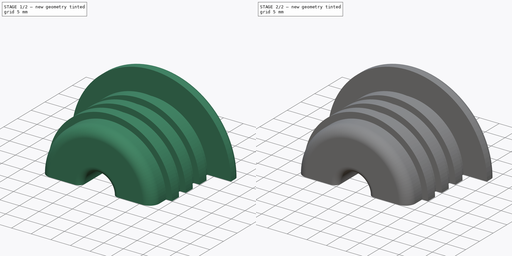
[diagram: build sequence overview — one tinted view per stage of 2, left to right]
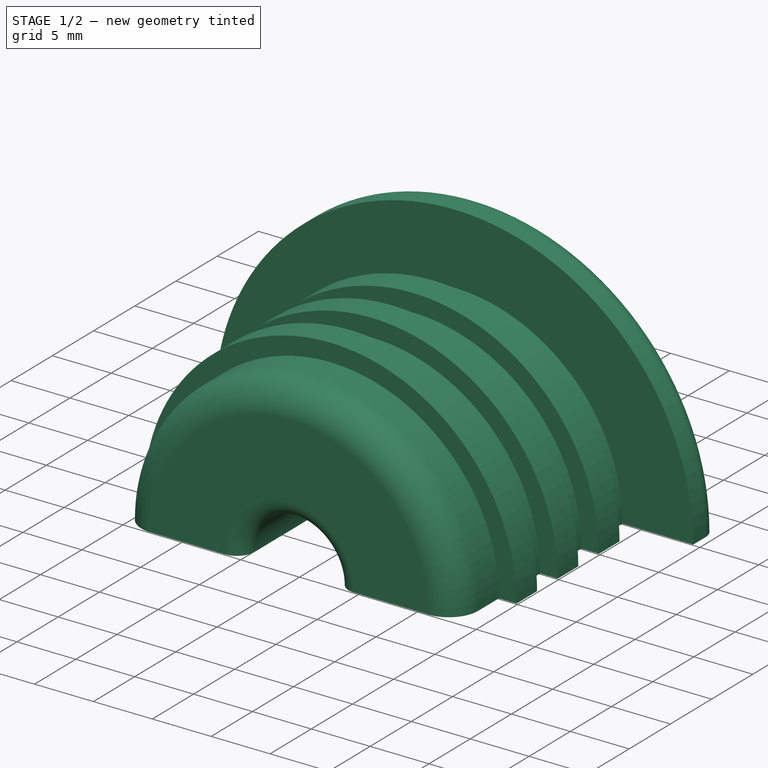
[diagram: stage 1 of 2 — iso view after this stage's code; geometry added in this stage tinted green]
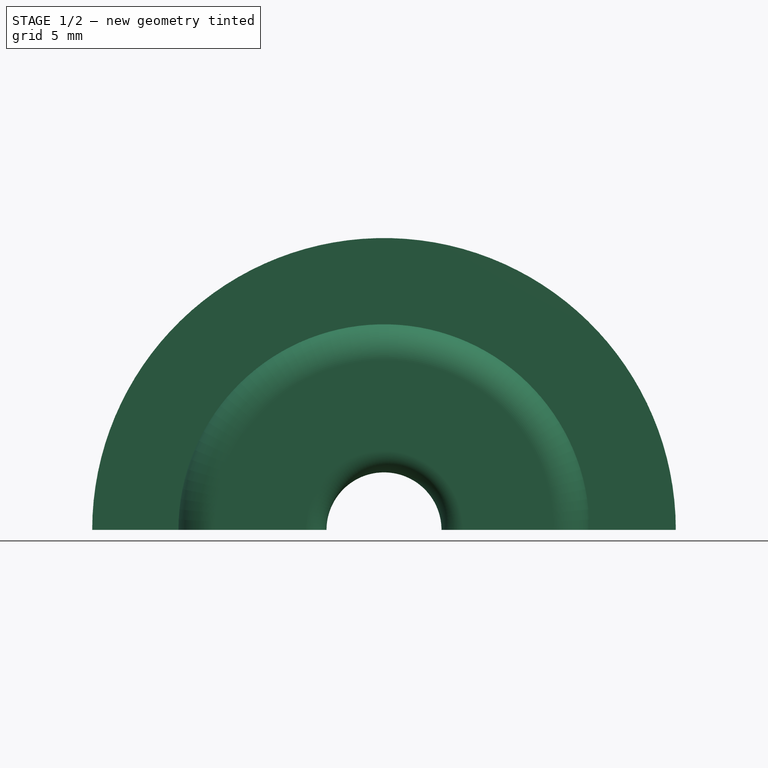
[diagram: stage 1 of 2 — front view after this stage's code; geometry added in this stage tinted green]
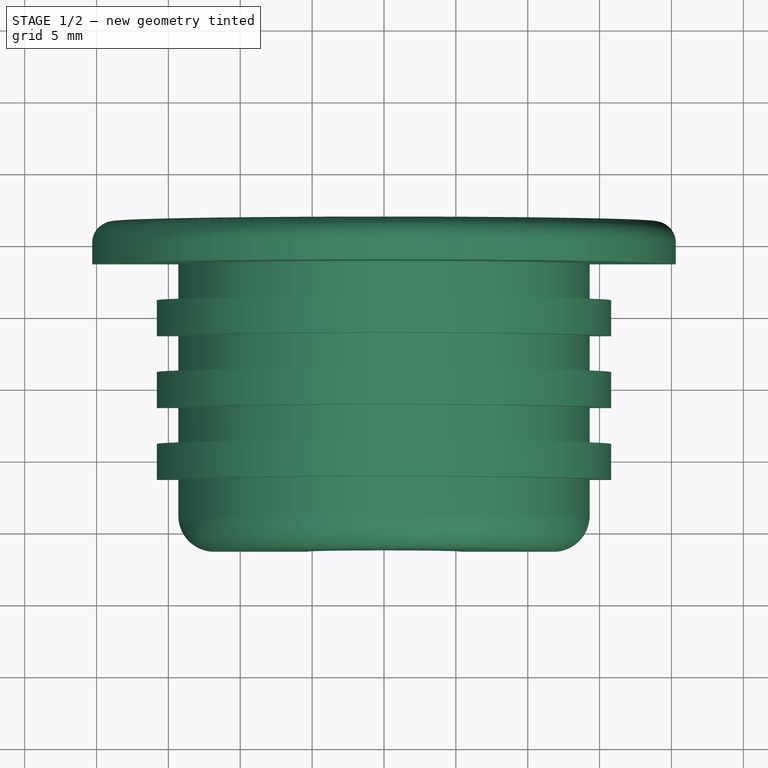
[diagram: stage 1 of 2 — top view after this stage's code; geometry added in this stage tinted green]
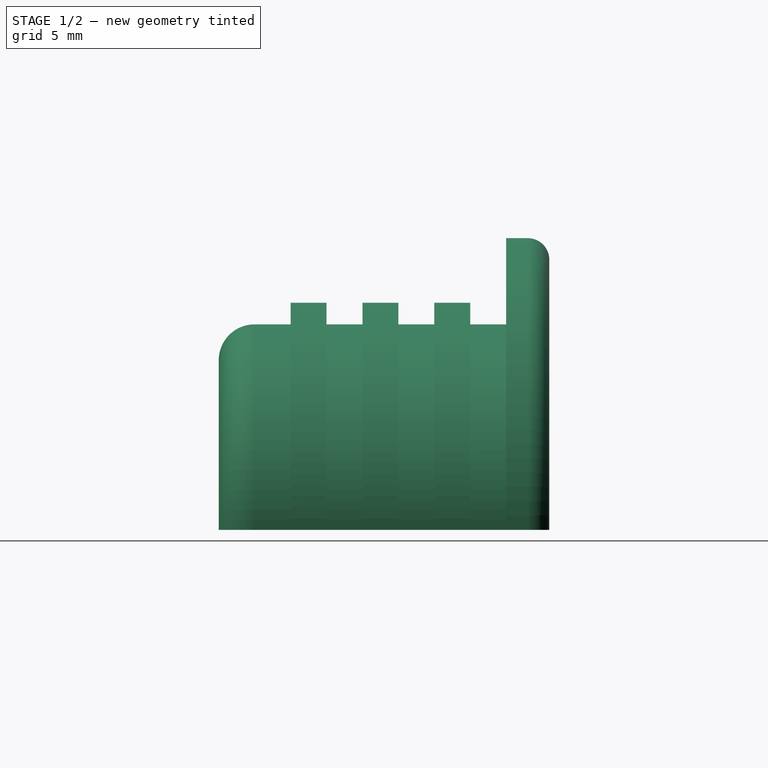
[diagram: stage 1 of 2 — right view after this stage's code; geometry added in this stage tinted green]
FCSTD DOCUMENT  (FreeCAD 0.15R4671 (Git))
Label: cable_stopper
License: All rights reserved
LicenseURL: http://en.wikipedia.org/wiki/All_rights_reserved
objects: Sketcher::SketchObject×2, PartDesign::Revolution×2
note: 6 computed .brp shape members not serialized (recipe doc carries the construction recipe); baked Part::Feature solids carry a one-line shape summary decoded from their .brp

FEATURE [Sketcher::SketchObject] Sketch001
  sketch-geometry (22):
    g0: LineSegment StartX=4 StartY=10.25 StartZ=0 EndX=4 EndY=-9.75 EndZ=0
    g1: LineSegment StartX=5.5 StartY=-11.25 StartZ=0 EndX=11.8034 EndY=-11.25 EndZ=0
    g2: LineSegment StartX=14.3034 StartY=-8.75 StartZ=0 EndX=14.3034 EndY=-6.25 EndZ=0
    g3: LineSegment StartX=14.3034 StartY=-6.25 StartZ=0 EndX=15.8034 EndY=-6.25 EndZ=0
    g4: LineSegment StartX=15.8034 StartY=-6.25 StartZ=0 EndX=15.8034 EndY=-3.75 EndZ=0
    g5: LineSegment StartX=15.8034 StartY=-3.75 StartZ=0 EndX=14.3034 EndY=-3.75 EndZ=0
    g6: LineSegment StartX=14.3034 StartY=-3.75 StartZ=0 EndX=14.3034 EndY=-1.25 EndZ=0
    g7: LineSegment StartX=14.3034 StartY=-1.25 StartZ=0 EndX=15.8034 EndY=-1.25 EndZ=0
    g8: LineSegment StartX=15.8034 StartY=-1.25 StartZ=0 EndX=15.8034 EndY=1.25 EndZ=0
    g9: LineSegment StartX=15.8034 StartY=1.25 StartZ=0 EndX=14.3034 EndY=1.25 EndZ=0
    g10: LineSegment StartX=14.3034 StartY=1.25 StartZ=0 EndX=14.3034 EndY=3.75 EndZ=0
    g11: LineSegment StartX=14.3034 StartY=3.75 StartZ=0 EndX=15.8034 EndY=3.75 EndZ=0
    g12: LineSegment StartX=15.8034 StartY=3.75 StartZ=0 EndX=15.8034 EndY=6.25 EndZ=0
    g13: LineSegment StartX=15.8034 StartY=6.25 StartZ=0 EndX=14.3034 EndY=6.25 EndZ=0
    g14: LineSegment StartX=14.3034 StartY=6.25 StartZ=0 EndX=14.3034 EndY=8.75 EndZ=0
    g15: LineSegment StartX=14.3034 StartY=8.75 StartZ=0 EndX=20.3034 EndY=8.75 EndZ=0
    g16: LineSegment StartX=20.3034 StartY=8.75 StartZ=0 EndX=20.3034 EndY=10.25 EndZ=0
    g17: LineSegment StartX=18.8034 StartY=11.75 StartZ=0 EndX=5.5 EndY=11.75 EndZ=0
    g18: ArcOfCircle CenterX=18.8034 CenterY=10.25 CenterZ=0 NormalX=0 NormalY=0 NormalZ=1 Radius=1.5 StartAngle=0 EndAngle=1.5708
    g19: ArcOfCircle CenterX=11.8034 CenterY=-8.75 CenterZ=0 NormalX=0 NormalY=0 NormalZ=1 Radius=2.5 StartAngle=4.71239 EndAngle=6.28319
    g20: ArcOfCircle CenterX=5.5 CenterY=10.25 CenterZ=0 NormalX=0 NormalY=0 NormalZ=1 Radius=1.5 StartAngle=1.5708 EndAngle=3.14159
    g21: ArcOfCircle CenterX=5.5 CenterY=-9.75 CenterZ=0 NormalX=0 NormalY=0 NormalZ=1 Radius=1.5 StartAngle=3.14159 EndAngle=4.71239
  constraints (62):
    c: Vertical(g0)
    c: Horizontal(g1)
    c: Vertical(g2)
    c: Coincident(g2,g3)
    c: Coincident(g3,g4)
    c: Vertical(g4)
    c: Coincident(g4,g5)
    c: Horizontal(g5)
    c: Coincident(g5,g6)
    c: Vertical(g6)
    c: Coincident(g6,g7)
    c: Horizontal(g7)
    c: Coincident(g7,g8)
    c: Vertical(g8)
    c: Coincident(g8,g9)
    c: Horizontal(g9)
    c: Coincident(g9,g10)
    c: Vertical(g10)
    c: Coincident(g10,g11)
    c: Horizontal(g11)
    c: Coincident(g11,g12)
    c: Vertical(g12)
    c: Coincident(g12,g13)
    c: Horizontal(g13)
    c: Coincident(g13,g14)
    c: Vertical(g14)
    c: Coincident(g14,g15)
    c: Horizontal(g15)
    c: Coincident(g15,g16)
    c: Horizontal(g17)
    c: Horizontal(g3)
    c: Vertical(g16)
    c: Equal(g3,g5)
    c: Equal(g5,g7)
    c: Equal(g7,g9)
    c: Equal(g9,g11)
    c: Equal(g11,g13)
    c: Equal(g8,g4)
    c: Equal(g4,g12)
    c: Equal(g14,g10)
    c: Equal(g10,g6)
    c: Equal(g6,g2)
    c: DistanceX(g3) = 1.5
    c: DistanceX(g15) = 6
    c: Symmetric(g8,g7,g-1)
    c: DistanceY(g12) = 2.5
    c: Tangent(g17,g18) = -1.5708
    c: Tangent(g16,g18) = -1.5708
    c: Tangent(g2,g19) = -1.5708
    c: Tangent(g1,g19) = -1.5708
    c: DistanceY(g17,g15) = -3
    c: DistanceY(g16) = 1.5
    c: DistanceY(g2) = 2.5
    c: Tangent(g17,g20) = -1.5708
    c: Tangent(g0,g20) = -1.5708
    c: Tangent(g0,g21) = -1.5708
    c: Tangent(g1,g21) = -1.5708
    c: Equal(g20,g21)
    c: DistanceY(g14,g0) = 1.5
    c: DistanceX(g17) = -13.3034
    c: DistanceX(g-1,g0) = 4
    c: DistanceY(g14,g1) = -20
FEATURE [PartDesign::Revolution] Revolution001  label="half_cable_stopper_wide"
  Angle = 180
  Axis = (0,1,0)
  Base = (0,0,0)
  ReferenceAxis = -> Sketch001 [V_Axis]
  Reversed = true
  Sketch = -> Sketch001
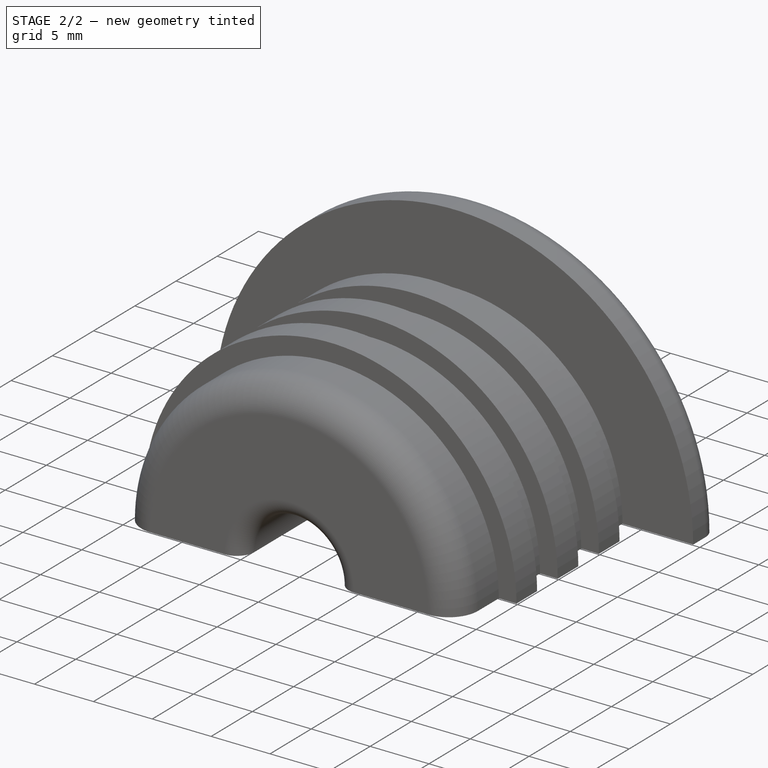
[diagram: stage 2 of 2 — iso view after this stage's code; geometry added in this stage tinted green]
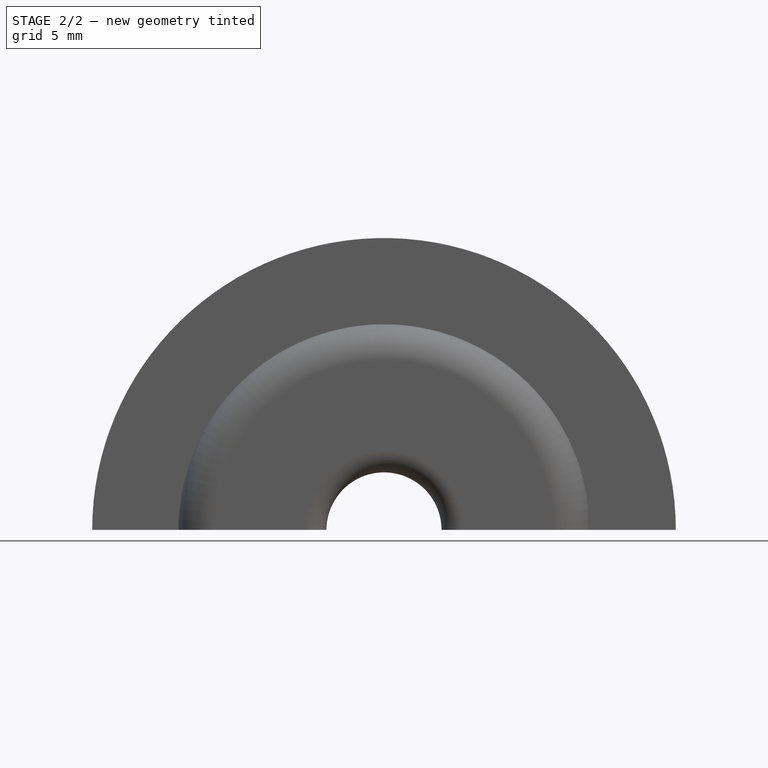
[diagram: stage 2 of 2 — front view after this stage's code; geometry added in this stage tinted green]
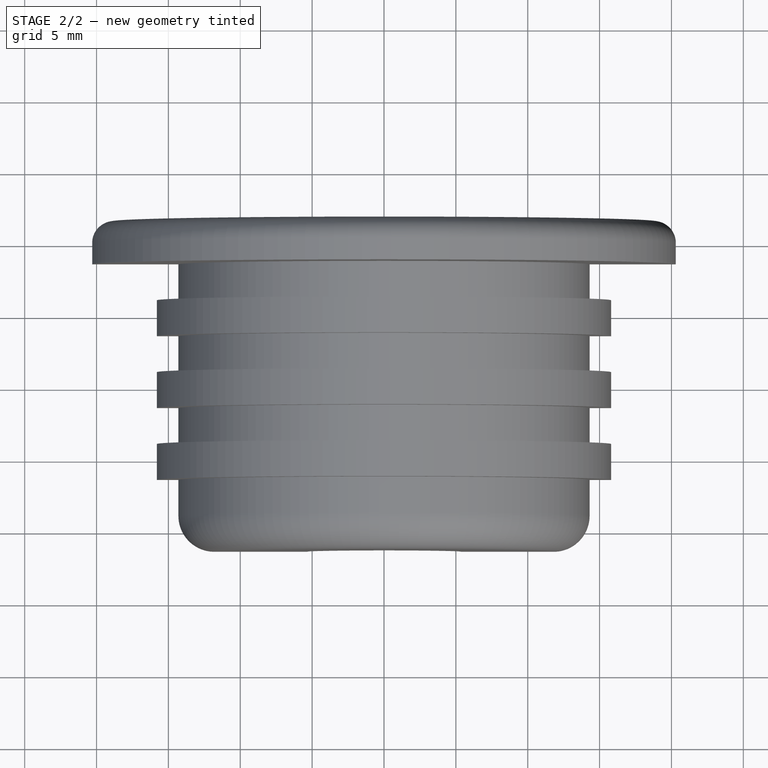
[diagram: stage 2 of 2 — top view after this stage's code; geometry added in this stage tinted green]
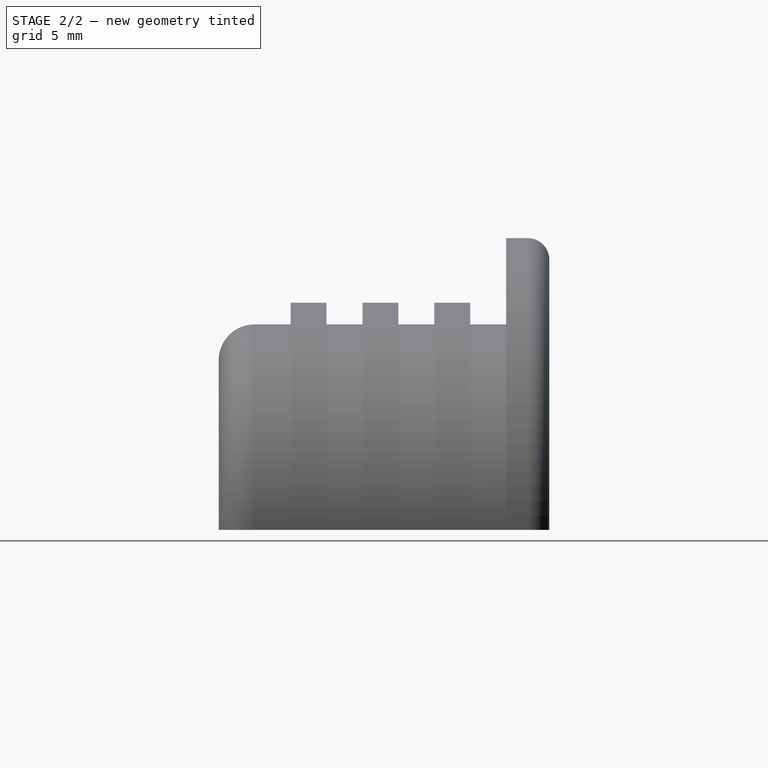
[diagram: stage 2 of 2 — right view after this stage's code; geometry added in this stage tinted green]
FEATURE [Sketcher::SketchObject] Sketch
  sketch-geometry (22):
    g0: LineSegment StartX=4 StartY=10.25 StartZ=0 EndX=4 EndY=-9.75 EndZ=0
    g1: LineSegment StartX=5.5 StartY=-11.25 StartZ=0 EndX=11.8034 EndY=-11.25 EndZ=0
    g2: LineSegment StartX=14.3034 StartY=-8.75 StartZ=0 EndX=14.3034 EndY=-6.25 EndZ=0
    g3: LineSegment StartX=14.3034 StartY=-6.25 StartZ=0 EndX=15.3034 EndY=-6.25 EndZ=0
    g4: LineSegment StartX=15.3034 StartY=-6.25 StartZ=0 EndX=15.3034 EndY=-3.75 EndZ=0
    g5: LineSegment StartX=15.3034 StartY=-3.75 StartZ=0 EndX=14.3034 EndY=-3.75 EndZ=0
    g6: LineSegment StartX=14.3034 StartY=-3.75 StartZ=0 EndX=14.3034 EndY=-1.25 EndZ=0
    g7: LineSegment StartX=14.3034 StartY=-1.25 StartZ=0 EndX=15.3034 EndY=-1.25 EndZ=0
    g8: LineSegment StartX=15.3034 StartY=-1.25 StartZ=0 EndX=15.3034 EndY=1.25 EndZ=0
    g9: LineSegment StartX=15.3034 StartY=1.25 StartZ=0 EndX=14.3034 EndY=1.25 EndZ=0
    g10: LineSegment StartX=14.3034 StartY=1.25 StartZ=0 EndX=14.3034 EndY=3.75 EndZ=0
    g11: LineSegment StartX=14.3034 StartY=3.75 StartZ=0 EndX=15.3034 EndY=3.75 EndZ=0
    g12: LineSegment StartX=15.3034 StartY=3.75 StartZ=0 EndX=15.3034 EndY=6.25 EndZ=0
    g13: LineSegment StartX=15.3034 StartY=6.25 StartZ=0 EndX=14.3034 EndY=6.25 EndZ=0
    g14: LineSegment StartX=14.3034 StartY=6.25 StartZ=0 EndX=14.3034 EndY=8.75 EndZ=0
    g15: LineSegment StartX=14.3034 StartY=8.75 StartZ=0 EndX=20.3034 EndY=8.75 EndZ=0
    g16: LineSegment StartX=20.3034 StartY=8.75 StartZ=0 EndX=20.3034 EndY=10.25 EndZ=0
    g17: LineSegment StartX=18.8034 StartY=11.75 StartZ=0 EndX=5.5 EndY=11.75 EndZ=0
    g18: ArcOfCircle CenterX=18.8034 CenterY=10.25 CenterZ=0 NormalX=0 NormalY=0 NormalZ=1 Radius=1.5 StartAngle=0 EndAngle=1.5708
    g19: ArcOfCircle CenterX=11.8034 CenterY=-8.75 CenterZ=0 NormalX=0 NormalY=0 NormalZ=1 Radius=2.5 StartAngle=4.71239 EndAngle=6.28319
    g20: ArcOfCircle CenterX=5.5 CenterY=10.25 CenterZ=0 NormalX=0 NormalY=0 NormalZ=1 Radius=1.5 StartAngle=1.5708 EndAngle=3.14159
    g21: ArcOfCircle CenterX=5.5 CenterY=-9.75 CenterZ=0 NormalX=0 NormalY=0 NormalZ=1 Radius=1.5 StartAngle=3.14159 EndAngle=4.71239
  constraints (62):
    c: Vertical(g0)
    c: Horizontal(g1)
    c: Vertical(g2)
    c: Coincident(g2,g3)
    c: Coincident(g3,g4)
    c: Vertical(g4)
    c: Coincident(g4,g5)
    c: Horizontal(g5)
    c: Coincident(g5,g6)
    c: Vertical(g6)
    c: Coincident(g6,g7)
    c: Horizontal(g7)
    c: Coincident(g7,g8)
    c: Vertical(g8)
    c: Coincident(g8,g9)
    c: Horizontal(g9)
    c: Coincident(g9,g10)
    c: Vertical(g10)
    c: Coincident(g10,g11)
    c: Horizontal(g11)
    c: Coincident(g11,g12)
    c: Vertical(g12)
    c: Coincident(g12,g13)
    c: Horizontal(g13)
    c: Coincident(g13,g14)
    c: Vertical(g14)
    c: Coincident(g14,g15)
    c: Horizontal(g15)
    c: Coincident(g15,g16)
    c: Horizontal(g17)
    c: Horizontal(g3)
    c: Vertical(g16)
    c: Equal(g3,g5)
    c: Equal(g5,g7)
    c: Equal(g7,g9)
    c: Equal(g9,g11)
    c: Equal(g11,g13)
    c: Equal(g8,g4)
    c: Equal(g4,g12)
    c: Equal(g14,g10)
    c: Equal(g10,g6)
    c: Equal(g6,g2)
    c: DistanceX(g3) = 1
    c: DistanceX(g15) = 6
    c: Symmetric(g8,g7,g-1)
    c: DistanceY(g12) = 2.5
    c: Tangent(g17,g18) = -1.5708
    c: Tangent(g16,g18) = -1.5708
    c: Tangent(g2,g19) = -1.5708
    c: Tangent(g1,g19) = -1.5708
    c: DistanceY(g17,g15) = -3
    c: DistanceY(g16) = 1.5
    c: DistanceY(g2) = 2.5
    c: Tangent(g17,g20) = -1.5708
    c: Tangent(g0,g20) = -1.5708
    c: Tangent(g0,g21) = -1.5708
    c: Tangent(g1,g21) = -1.5708
    c: Equal(g20,g21)
    c: DistanceY(g14,g0) = 1.5
    c: DistanceX(g17) = -13.3034
    c: DistanceX(g-1,g0) = 4
    c: DistanceY(g14,g1) = -20
FEATURE [PartDesign::Revolution] Revolution  label="half_cable_stopper"
  Angle = 180
  Axis = (0,1,0)
  Base = (0,0,0)
  ReferenceAxis = -> Sketch [V_Axis]
  Reversed = true
  Sketch = -> Sketch
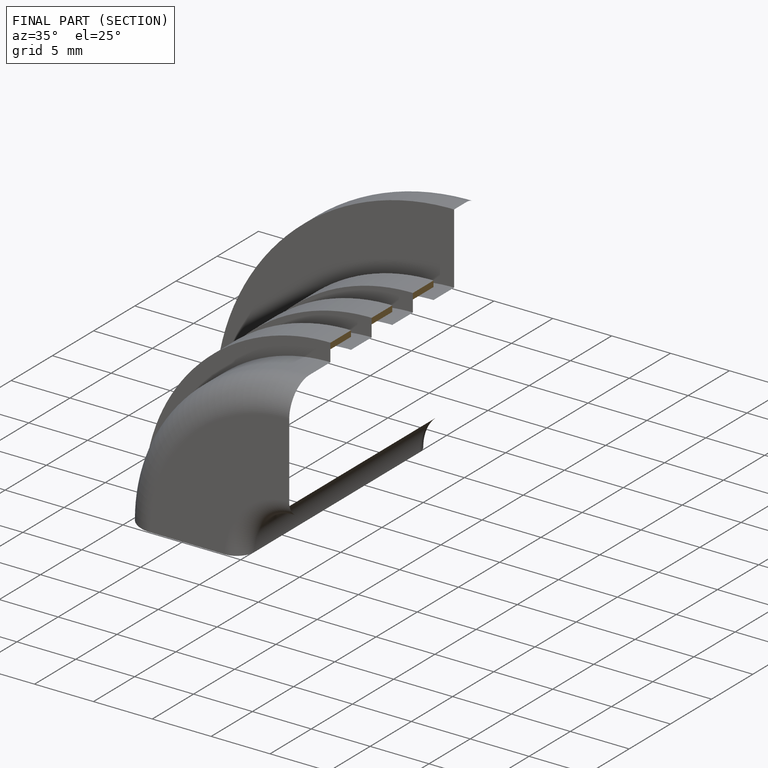
[diagram: finished part — half-section view (interior)]
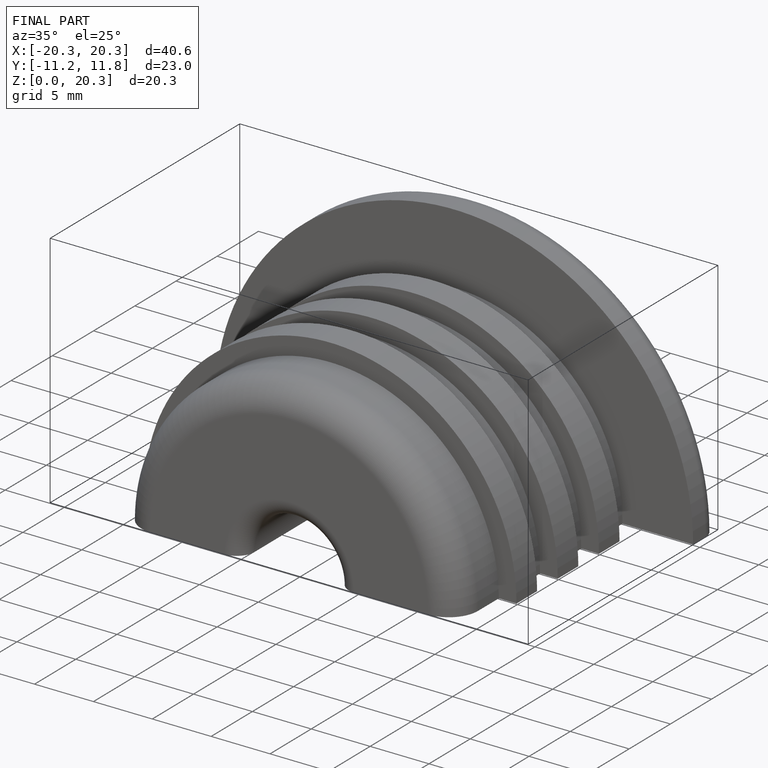
[diagram: finished part — iso view with bounding-box wireframe]
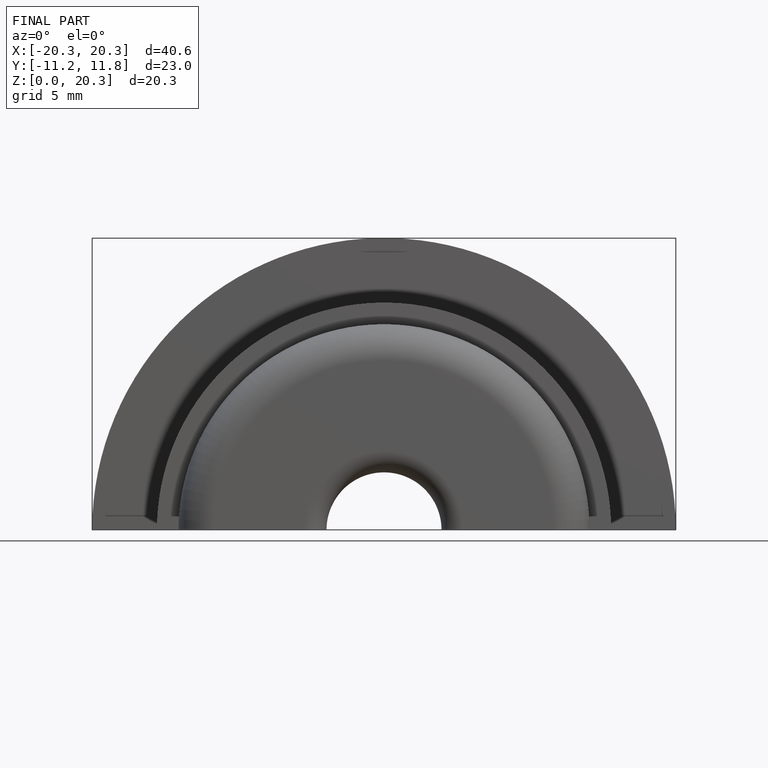
[diagram: finished part — front view with bounding-box wireframe]
